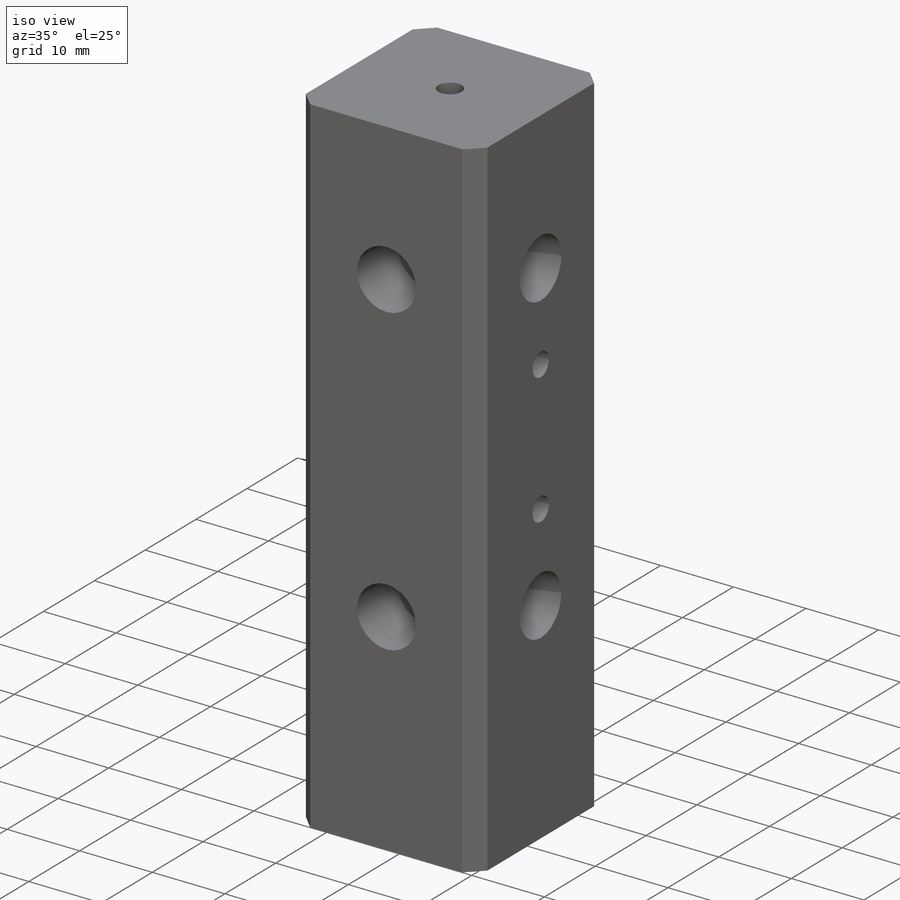
[diagram: iso view]
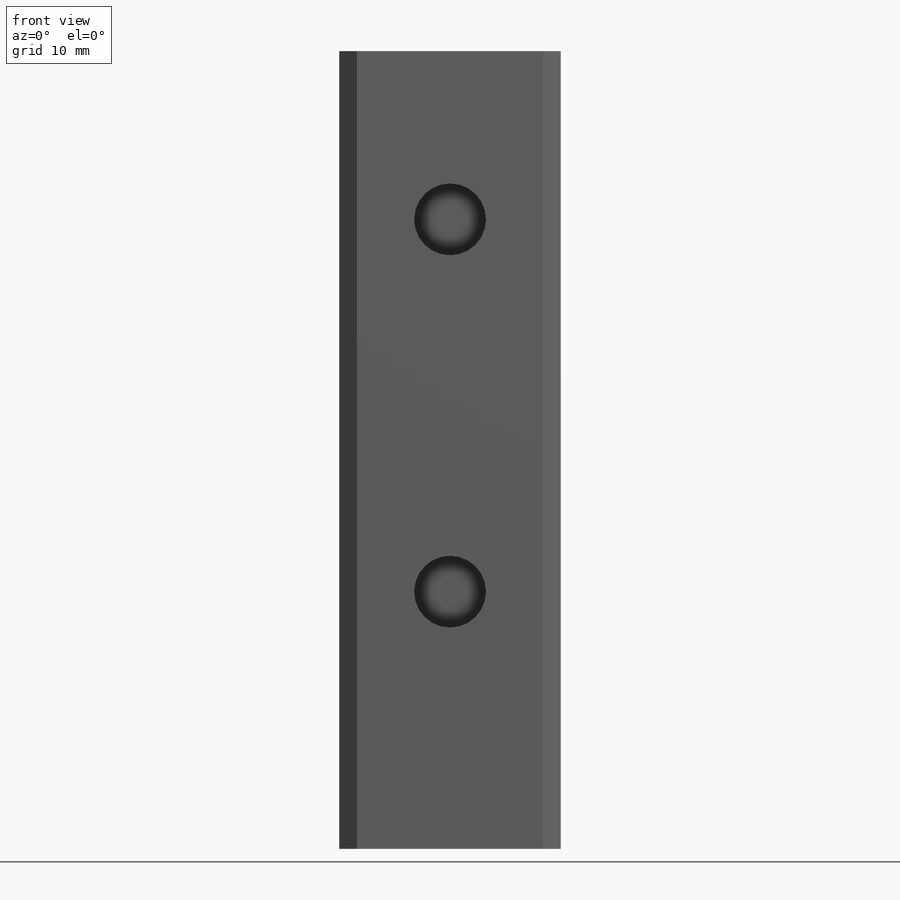
[diagram: front view]
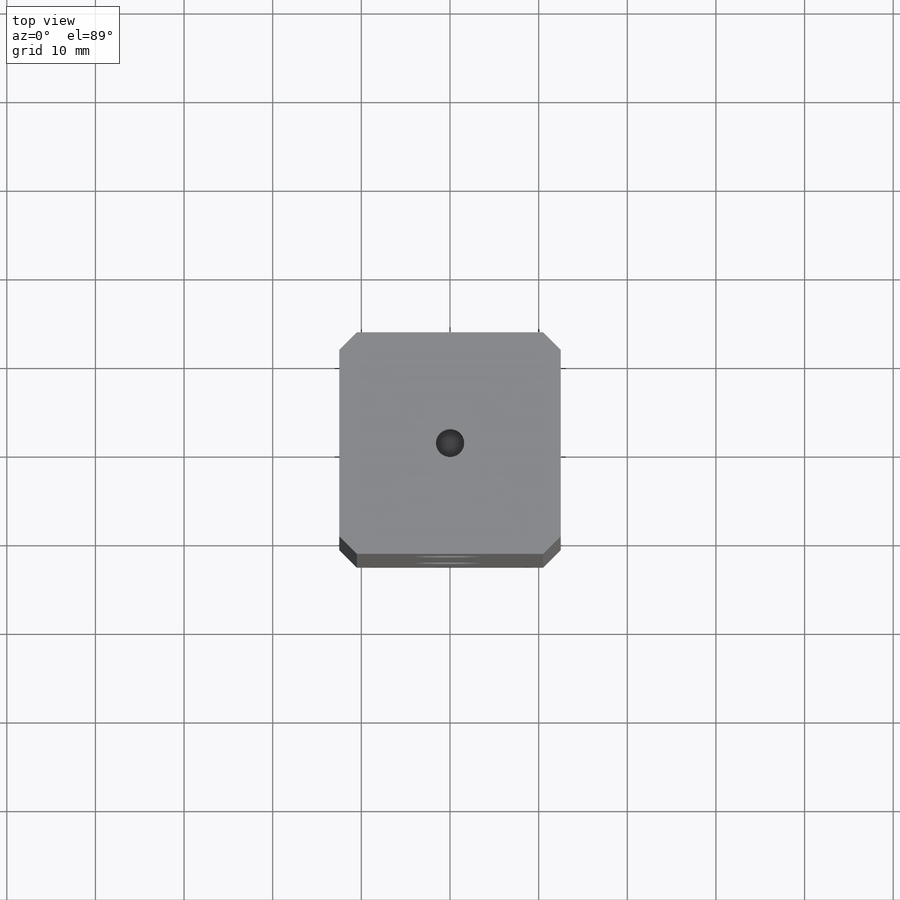
[diagram: top view]
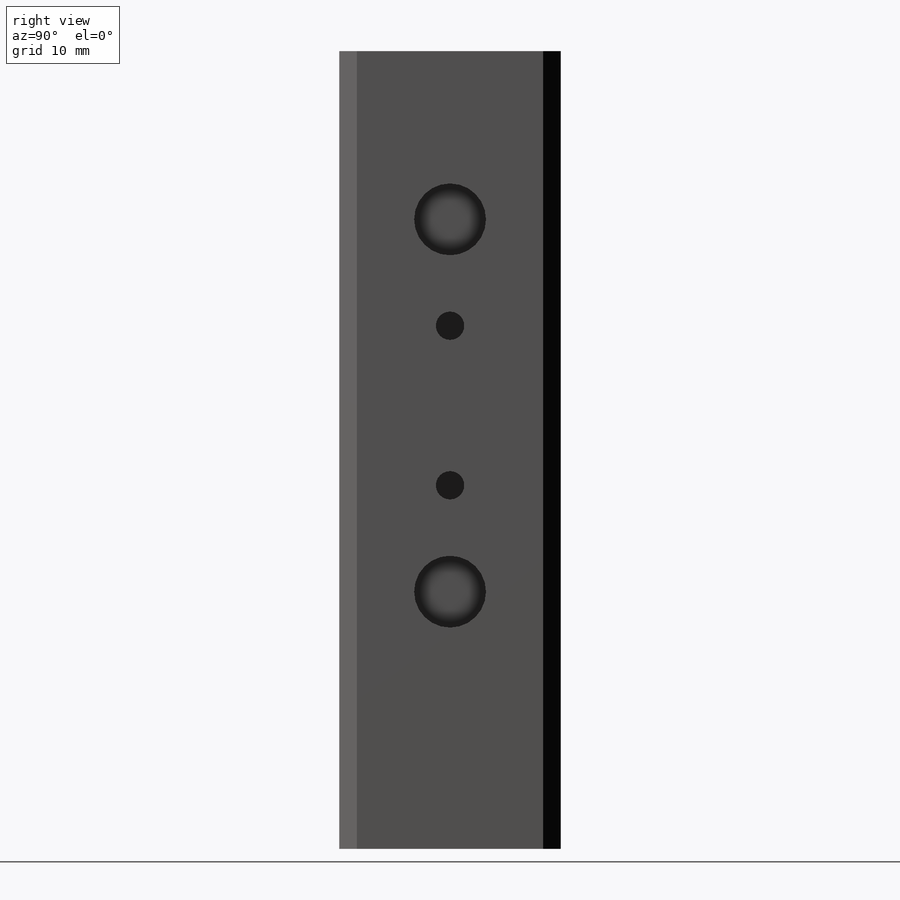
[diagram: right view]
SOLIDWORKS PART (.sldprt)
format: sldprt  version: not decoded by parser v0  size: 280,064 bytes
history: native  units: mm
features: sketch x6, cut_extrude x4, material x1, extrude x1, chamfer x1 (+13 scaffold rows collapsed)
feature tree (26):
  scaffold x13  (default folders/planes/origin — collapsed)
  material  "Material <not specified>"
  sketch  "Sketch1"  dims[D1=25.0mm D2=25.0mm]
  extrude  "Boss-Extrude1"  Depth=90mm
  sketch  "Sketch2"  dims[c1.D1=~4.322938mm c1.D3=5.0mm c1.D4=2.5mm c1.D2=8.0mm c2.D4=8.0mm c2.D1=8.0mm c2.D5=8.0mm c3.D4=8.0mm c3.D6=4.0mm c3.D2=4.2mm c3.D1=10.0mm c4.D2=3.5mm c4.D3=42.0mm c4.D4=17.0mm c4.D1=12.5mm c4.D5=12.5mm c5.D4=19.0mm]
  cut_extrude  "Cut-Extrude1"  Depth=8mm
  sketch  "Sketch3"  dims[c1.D1=5.0mm c1.D2=5.0mm c1.D3=2.5mm c2.D1=8.0mm c2.D3=8.0mm c2.D4=8.0mm c3.D1=8.0mm c3.D5=4.2mm c4.D1=3.5mm c4.D2=42.0mm c5.D1=17.0mm c5.D3=12.5mm c5.D4=12.5mm c6.D1=19.0mm]
  cut_extrude  "Cut-Extrude7"  Depth=8mm
  chamfer  "Chamfer1"  Distance=2mm Angle=45deg
  sketch  "Sketch4"
  sketch  "Sketch5"  dims[c1.D1=6.2mm c1.D2=6.2mm c1.D3=1.75mm c2.D1=12.0mm c2.D2=12.0mm]
  cut_extrude  "Cut-Extrude8"  Depth=12.5mm
  sketch  "Sketch7"  dims[D1=3.05mm]
  cut_extrude  "Cut-Extrude9"  Depth=10mm
decode coverage: 11 of 12 modeling features carry decoded parameters
note: ~ marks probable driven/reference dimensions
note: suppression state not decoded; provenance and decode notes live in map.json
